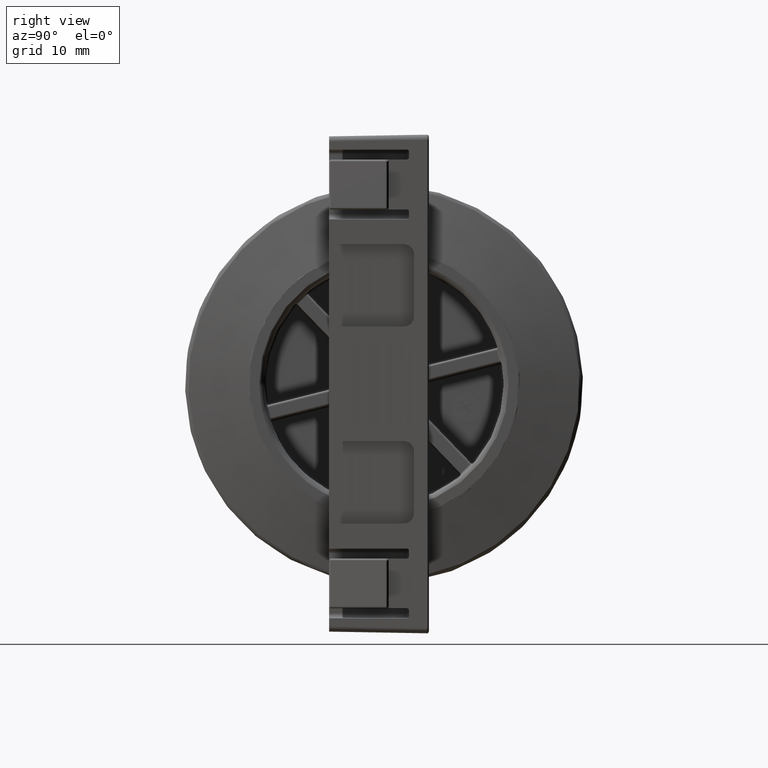
[diagram: clean part render]
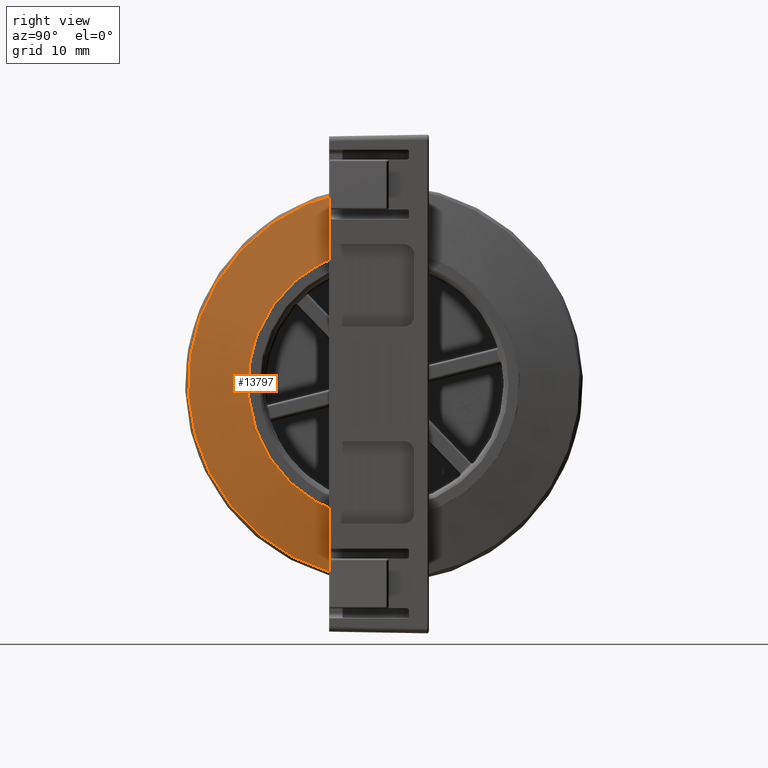
[diagram: same view with one face highlighted and labeled with its STEP entity id]
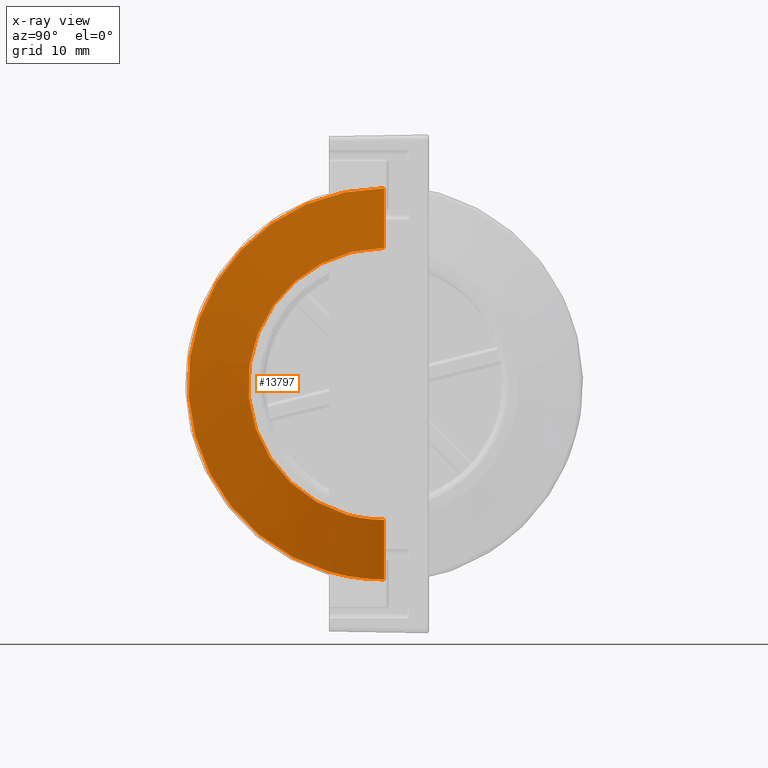
[diagram: x-ray of the same camera — body ghosted, the highlighted face saturated]
A machine part, right view. The second image highlights one B-rep face of the part: STEP entity #13797.
The next image is the same camera in x-ray: the body ghosted, the highlighted face saturated — about 0% of this face is hidden behind the body in this view.
In plain terms, the highlighted conical surface has half-angle 80 deg.
Its self-contained STEP definition (entity closure, byte-faithful):
#822 = LINE ( 'NONE', #14522, #21027 ) ;
#1655 = CARTESIAN_POINT ( 'NONE',  ( 10.82979057219980300, -4.500000000000000900, -1.359533954965509900E-015 ) ) ;
#1906 = EDGE_CURVE ( 'NONE', #8276, #18926, #822, .T. ) ;
#1960 = DIRECTION ( 'NONE',  ( 0.0000000000000000000, -0.2760693810520481500, -0.9611377096158173500 ) ) ;
#2457 = CARTESIAN_POINT ( 'NONE',  ( 11.88485487364117300, -8.262725343311835500, -13.09995771571023200 ) ) ;
#3164 = DIRECTION ( 'NONE',  ( -0.1736481776624627700, 1.206041662502862500E-016, -0.9848077530129958300 ) ) ;
#3892 = CIRCLE ( 'NONE', #16384, 19.61320360282966700 ) ;
#3996 = DIRECTION ( 'NONE',  ( -1.000000000000000000, -1.473868700562970100E-017, 7.703719777548940000E-034 ) ) ;
#4536 = CARTESIAN_POINT ( 'NONE',  ( 10.82979057219980300, -9.914604979080987600, -18.85098958905240400 ) ) ;
#4953 = EDGE_CURVE ( 'NONE', #8276, #16287, #18711, .T. ) ;
#4984 = EDGE_LOOP ( 'NONE', ( #15792, #22300, #27912, #21696, #12051, #19719 ) ) ;
#6008 = DIRECTION ( 'NONE',  ( -1.000000000000000000, -1.473868700562970100E-017, 7.703719777548940000E-034 ) ) ;
#6229 = DIRECTION ( 'NONE',  ( 0.0000000000000000000, -0.2760693810520480900, -0.9611377096158172400 ) ) ;
#6542 = DIRECTION ( 'NONE',  ( 0.0000000000000000000, -0.2760693810520481500, -0.9611377096158173500 ) ) ;
#7530 = CARTESIAN_POINT ( 'NONE',  ( 10.82979057219980300, -4.499999999999998200, -19.61320360299073700 ) ) ;
#8210 = VERTEX_POINT ( 'NONE', #24108 ) ;
#8276 = VERTEX_POINT ( 'NONE', #11500 ) ;
#9242 = AXIS2_PLACEMENT_3D ( 'NONE', #10267, #16978, #21389 ) ;
#9877 = EDGE_CURVE ( 'NONE', #16287, #14670, #13134, .T. ) ;
#9937 = CONICAL_SURFACE ( 'NONE', #9242, 19.61320360283452800, 1.396263401600000200 ) ;
#10267 = CARTESIAN_POINT ( 'NONE',  ( 10.82979057222734700, -4.500000000000000900, -1.734723475976807100E-015 ) ) ;
#10498 = DIRECTION ( 'NONE',  ( 0.0000000000000000000, -0.2760693810520480900, -0.9611377096158172400 ) ) ;
#11452 = AXIS2_PLACEMENT_3D ( 'NONE', #1655, #3996, #6542 ) ;
#11500 = CARTESIAN_POINT ( 'NONE',  ( 11.88485487364117300, -4.499999999999999100, -13.62963661153992200 ) ) ;
#12026 = AXIS2_PLACEMENT_3D ( 'NONE', #19515, #6008, #10498 ) ;
#12051 = ORIENTED_EDGE ( 'NONE', *, *, #16167, .F. ) ;
#13039 = DIRECTION ( 'NONE',  ( -0.1736481776624627700, 0.0000000000000000000, 0.9848077530129958300 ) ) ;
#13134 = CIRCLE ( 'NONE', #27000, 13.62963661153992100 ) ;
#13181 = CARTESIAN_POINT ( 'NONE',  ( 10.82979057219980300, -4.500000000000000900, -1.359533954965509900E-015 ) ) ;
#13397 = VERTEX_POINT ( 'NONE', #4536 ) ;
#13453 = FACE_OUTER_BOUND ( 'NONE', #4984, .T. ) ;
#13797 = ADVANCED_FACE ( 'NONE', ( #13453 ), #9937, .T. ) ;
#14377 = VECTOR ( 'NONE', #13039, 1000.000000000000000 ) ;
#14522 = CARTESIAN_POINT ( 'NONE',  ( 10.82979057222734700, -4.499999999999998200, -19.61320360283452800 ) ) ;
#14670 = VERTEX_POINT ( 'NONE', #21205 ) ;
#15007 = CARTESIAN_POINT ( 'NONE',  ( 11.88485487364117300, -4.500000000000000900, -1.359533954965509900E-015 ) ) ;
#15792 = ORIENTED_EDGE ( 'NONE', *, *, #1906, .F. ) ;
#16167 = EDGE_CURVE ( 'NONE', #13397, #8210, #21185, .T. ) ;
#16287 = VERTEX_POINT ( 'NONE', #2457 ) ;
#16384 = AXIS2_PLACEMENT_3D ( 'NONE', #13181, #29002, #1960 ) ;
#16978 = DIRECTION ( 'NONE',  ( -1.000000000000000000, 0.0000000000000000000, 0.0000000000000000000 ) ) ;
#17595 = EDGE_CURVE ( 'NONE', #14670, #8210, #21163, .T. ) ;
#18711 = CIRCLE ( 'NONE', #12026, 13.62963661153992100 ) ;
#18926 = VERTEX_POINT ( 'NONE', #7530 ) ;
#19515 = CARTESIAN_POINT ( 'NONE',  ( 11.88485487364117300, -4.500000000000000900, -1.359533954965509900E-015 ) ) ;
#19719 = ORIENTED_EDGE ( 'NONE', *, *, #24285, .F. ) ;
#21027 = VECTOR ( 'NONE', #3164, 1000.000000000000000 ) ;
#21163 = LINE ( 'NONE', #21783, #14377 ) ;
#21185 = CIRCLE ( 'NONE', #11452, 19.61320360282966700 ) ;
#21205 = CARTESIAN_POINT ( 'NONE',  ( 11.88485487364117300, -4.500000000000000900, 13.62963661153991900 ) ) ;
#21389 = DIRECTION ( 'NONE',  ( 0.0000000000000000000, 0.0000000000000000000, 1.000000000000000000 ) ) ;
#21696 = ORIENTED_EDGE ( 'NONE', *, *, #17595, .T. ) ;
#21783 = CARTESIAN_POINT ( 'NONE',  ( 10.82979057222734700, -4.500000000000000900, 19.61320360283452800 ) ) ;
#22300 = ORIENTED_EDGE ( 'NONE', *, *, #4953, .T. ) ;
#24108 = CARTESIAN_POINT ( 'NONE',  ( 10.82979057219980300, -4.500000000000000900, 19.61320360299073700 ) ) ;
#24285 = EDGE_CURVE ( 'NONE', #18926, #13397, #3892, .T. ) ;
#26432 = DIRECTION ( 'NONE',  ( -1.000000000000000000, -1.473868700562970100E-017, 7.703719777548940000E-034 ) ) ;
#27000 = AXIS2_PLACEMENT_3D ( 'NONE', #15007, #26432, #6229 ) ;
#27912 = ORIENTED_EDGE ( 'NONE', *, *, #9877, .T. ) ;
#29002 = DIRECTION ( 'NONE',  ( -1.000000000000000000, -1.473868700562970100E-017, 7.703719777548940000E-034 ) ) ;